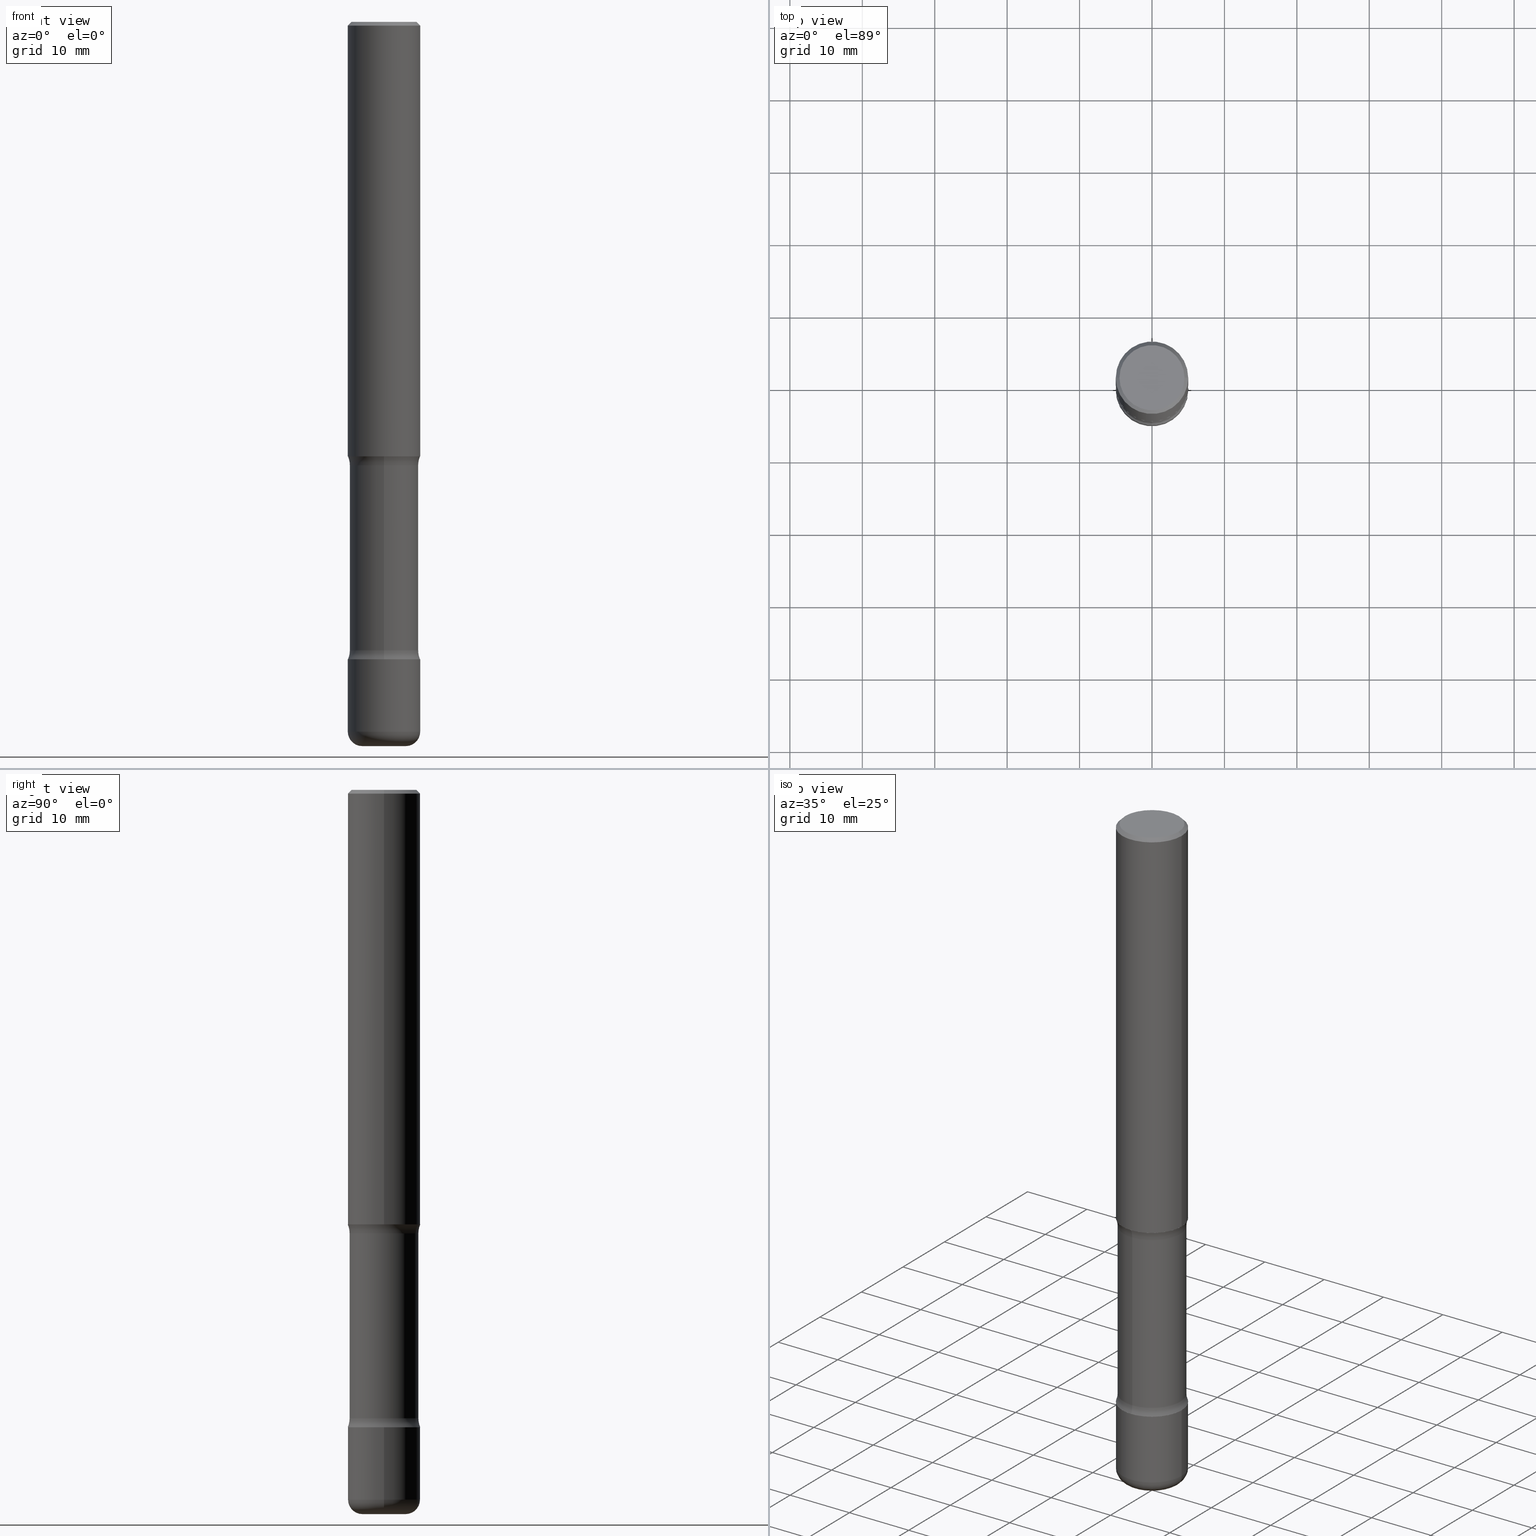
[diagram: canonical four-view strip — front | top / right | iso, engineering-drawing reading convention]
A machine part, canonical four-view strip (front | top / right | iso — engineering-drawing reading convention). The complete STEP part file that produces these views, byte-faithful:
ISO-10303-21;
HEADER;
FILE_DESCRIPTION (( 'STEP AP203' ),
    '1' );
FILE_NAME ('46825.STEP',
    '2024-03-02T05:34:21',
    ( '' ),
    ( '' ),
    'SwSTEP 2.0',
    'SolidWorks 2023',
    '' );
FILE_SCHEMA (( 'CONFIG_CONTROL_DESIGN' ));
ENDSEC;

DATA;
#1 = DIRECTION ( 'NONE',  ( 1.000000000000000000, -6.982962677686266711E-15, 4.875932113059882493E-29 ) ) ;
#2 = AXIS2_PLACEMENT_3D ( 'NONE', #495, #454, #107 ) ;
#3 = APPROVAL_PERSON_ORGANIZATION ( #431, #208, #305 ) ;
#4 = CALENDAR_DATE ( 2024, 2, 3 ) ;
#5 = EDGE_LOOP ( 'NONE', ( #354, #187 ) ) ;
#6 = ORIENTED_EDGE ( 'NONE', *, *, #452, .F. ) ;
#7 = EDGE_CURVE ( 'NONE', #347, #151, #129, .T. ) ;
#8 = LINE ( 'NONE', #16, #221 ) ;
#9 = VERTEX_POINT ( 'NONE', #148 ) ;
#10 = EDGE_LOOP ( 'NONE', ( #534, #532 ) ) ;
#11 = CARTESIAN_POINT ( 'NONE',  ( 5.776686413970530874E-29, -8.247577218615281204E-15, -2.362200000000000522 ) ) ;
#12 = CLOSED_SHELL ( 'NONE', ( #348, #316, #63, #189, #24, #50 ) ) ;
#13 = ORGANIZATION ( 'UNSPECIFIED', 'UNSPECIFIED', '' ) ;
#14 = EDGE_LOOP ( 'NONE', ( #502, #144, #415, #143 ) ) ;
#15 = ADVANCED_FACE ( 'NONE', ( #325 ), #116, .T. ) ;
#16 = CARTESIAN_POINT ( 'NONE',  ( 0.1968499999999999139, -1.420318657638188530E-15, -0.02000000000000006981 ) ) ;
#17 = ORIENTED_EDGE ( 'NONE', *, *, #250, .T. ) ;
#18 = ORIENTED_EDGE ( 'NONE', *, *, #54, .T. ) ;
#19 = CC_DESIGN_PERSON_AND_ORGANIZATION_ASSIGNMENT ( #93, #497, ( #74 ) ) ;
#20 = EDGE_LOOP ( 'NONE', ( #318, #62, #392, #544 ) ) ;
#21 = AXIS2_PLACEMENT_3D ( 'NONE', #512, #36, #549 ) ;
#22 = DIRECTION ( 'NONE',  ( 2.624067104346795258E-29, -3.235718410691801766E-15, -1.000000000000000000 ) ) ;
#23 = AXIS2_PLACEMENT_3D ( 'NONE', #436, #350, #41 ) ;
#24 = ADVANCED_FACE ( 'NONE', ( #110 ), #496, .T. ) ;
#25 = DIRECTION ( 'NONE',  ( -2.445468806185136597E-29, 3.491481338843145583E-15, 1.000000000000000000 ) ) ;
#26 = EDGE_LOOP ( 'NONE', ( #18, #455, #400, #100 ) ) ;
#27 = DIRECTION ( 'NONE',  ( -1.000000000000000000, 6.982962677686265922E-15, -4.876176775795935793E-29 ) ) ;
#28 = CARTESIAN_POINT ( 'NONE',  ( -1.316701078222246415E-15, -0.1870000000000088536, -2.410836174808469679 ) ) ;
#29 = AXIS2_PLACEMENT_3D ( 'NONE', #193, #150, #498 ) ;
#30 = CC_DESIGN_PERSON_AND_ORGANIZATION_ASSIGNMENT ( #279, #311, ( #351 ) ) ;
#31 = DIRECTION ( 'NONE',  ( 2.438088387897960049E-29, -3.491481338843145188E-15, -1.000000000000000000 ) ) ;
#32 = DIRECTION ( 'NONE',  ( 0.7071067811865472397, -7.319954787623254468E-15, -0.7071067811865477948 ) ) ;
#33 = PLANE ( 'NONE',  #542 ) ;
#34 = CARTESIAN_POINT ( 'NONE',  ( 0.000000000000000000, 0.000000000000000000, 0.000000000000000000 ) ) ;
#35 = PERSON_AND_ORGANIZATION_ROLE ( 'design_supplier' ) ;
#36 = DIRECTION ( 'NONE',  ( -2.445468806185136597E-29, 3.491481338843145583E-15, 1.000000000000000000 ) ) ;
#37 = CYLINDRICAL_SURFACE ( 'NONE', #522, 0.1968500000000000250 ) ;
#38 = EDGE_CURVE ( 'NONE', #98, #526, #439, .T. ) ;
#39 = AXIS2_PLACEMENT_3D ( 'NONE', #377, #173, #547 ) ;
#40 = FACE_OUTER_BOUND ( 'NONE', #490, .T. ) ;
#41 = DIRECTION ( 'NONE',  ( 1.000000000000000000, -6.982962677686269866E-15, 0.000000000000000000 ) ) ;
#42 = DIRECTION ( 'NONE',  ( 6.982962677686265922E-15, 1.000000000000000000, -2.775563112689115117E-15 ) ) ;
#43 = DIRECTION ( 'NONE',  ( 1.000000000000000000, -6.982962677686265922E-15, 4.876176775795935793E-29 ) ) ;
#44 =( LENGTH_UNIT ( ) NAMED_UNIT ( * ) SI_UNIT ( $, .METRE. ) );
#45 = DIRECTION ( 'NONE',  ( 2.624067104346795258E-29, -3.235718410691801766E-15, -1.000000000000000000 ) ) ;
#46 = FACE_OUTER_BOUND ( 'NONE', #185, .T. ) ;
#47 = CIRCLE ( 'NONE', #500, 0.1968500000000001082 ) ;
#48 = AXIS2_PLACEMENT_3D ( 'NONE', #404, #438, #353 ) ;
#49 = DIRECTION ( 'NONE',  ( 6.982962677686265922E-15, 1.000000000000000000, -3.235718410691801766E-15 ) ) ;
#50 = ADVANCED_FACE ( 'NONE', ( #285 ), #70, .F. ) ;
#51 = APPLICATION_PROTOCOL_DEFINITION ( 'international standard', 'config_control_design', 1994, #517 ) ;
#52 = ORIENTED_EDGE ( 'NONE', *, *, #141, .T. ) ;
#53 = EDGE_LOOP ( 'NONE', ( #451, #273 ) ) ;
#54 = EDGE_CURVE ( 'NONE', #352, #395, #47, .T. ) ;
#55 = CARTESIAN_POINT ( 'NONE',  ( 1.305814020727390180E-15, 0.1869999999999915063, -2.410836174808470567 ) ) ;
#56 = VERTEX_POINT ( 'NONE', #196 ) ;
#57 = MANIFOLD_SOLID_BREP ( 'Body-Move/Copy2[1]', #12 ) ;
#58 = AXIS2_PLACEMENT_3D ( 'NONE', #389, #559, #172 ) ;
#59 = ORIENTED_EDGE ( 'NONE', *, *, #263, .F. ) ;
#60 = CC_DESIGN_APPROVAL ( #208, ( #355 ) ) ;
#61 = DATE_AND_TIME ( #327, #121 ) ;
#62 = ORIENTED_EDGE ( 'NONE', *, *, #152, .T. ) ;
#63 = ADVANCED_FACE ( 'NONE', ( #416 ), #290, .T. ) ;
#64 = ORIENTED_EDGE ( 'NONE', *, *, #382, .F. ) ;
#65 = CARTESIAN_POINT ( 'NONE',  ( 4.890937612370289799E-31, -6.982962677686315028E-17, -0.02000000000000006981 ) ) ;
#66 = CARTESIAN_POINT ( 'NONE',  ( 8.472571225909025905E-29, -1.209658624655596531E-14, -3.464600000000000346 ) ) ;
#67 = CIRCLE ( 'NONE', #337, 0.1768499999999998407 ) ;
#68 = ORIENTED_EDGE ( 'NONE', *, *, #133, .F. ) ;
#69 = DIRECTION ( 'NONE',  ( -2.445468806185136597E-29, 3.491481338843145583E-15, 1.000000000000000000 ) ) ;
#70 = PLANE ( 'NONE',  #508 ) ;
#71 = EDGE_CURVE ( 'NONE', #9, #280, #447, .T. ) ;
#72 = DIRECTION ( 'NONE',  ( -1.000000000000000000, 6.982962677686265922E-15, -4.883557194083112340E-29 ) ) ;
#73 = AXIS2_PLACEMENT_3D ( 'NONE', #224, #393, #399 ) ;
#74 = SECURITY_CLASSIFICATION ( '', '', #211 ) ;
#75 = CARTESIAN_POINT ( 'NONE',  ( 0.1968500000000001082, -1.347118244965850692E-14, -3.464600000000000346 ) ) ;
#76 = DIRECTION ( 'NONE',  ( -2.445468806185136877E-29, 3.491481338843145188E-15, 1.000000000000000000 ) ) ;
#77 = DIRECTION ( 'NONE',  ( -2.445468806185136877E-29, 3.491481338843145188E-15, 1.000000000000000000 ) ) ;
#78 = DIRECTION ( 'NONE',  ( 1.000000000000000000, -6.982962677686269866E-15, 0.000000000000000000 ) ) ;
#79 = CARTESIAN_POINT ( 'NONE',  ( 1.305814020727429623E-15, 0.1869999999999864826, -3.937000000000001165 ) ) ;
#80 = TOROIDAL_SURFACE ( 'NONE', #336, 0.3120000000000001106, 0.1250000000000000278 ) ;
#81 = VECTOR ( 'NONE', #76, 39.37007874015748143 ) ;
#82 = DIRECTION ( 'NONE',  ( 7.105427357601001859E-15, 1.000000000000000000, -3.491481338843145583E-15 ) ) ;
#83 = CARTESIAN_POINT ( 'NONE',  ( -0.1968499999999999139, 1.304766576325677916E-15, -0.02000000000000006981 ) ) ;
#84 =( NAMED_UNIT ( * ) PLANE_ANGLE_UNIT ( ) SI_UNIT ( $, .RADIAN. ) );
#85 = CARTESIAN_POINT ( 'NONE',  ( -0.1968500000000001082, -1.138518097276347833E-14, -3.464600000000000346 ) ) ;
#86 = DIRECTION ( 'NONE',  ( 2.445468806185136597E-29, -3.491481338843145583E-15, -1.000000000000000000 ) ) ;
#87 = EDGE_CURVE ( 'NONE', #488, #236, #176, .T. ) ;
#88 = PERSON_AND_ORGANIZATION ( #405, #13 ) ;
#89 = VERTEX_POINT ( 'NONE', #341 ) ;
#90 = CALENDAR_DATE ( 2024, 2, 3 ) ;
#91 = CIRCLE ( 'NONE', #39, 0.1870000000000001938 ) ;
#92 = AXIS2_PLACEMENT_3D ( 'NONE', #516, #427, #480 ) ;
#93 = PERSON_AND_ORGANIZATION ( #405, #13 ) ;
#95 = EDGE_CURVE ( 'NONE', #446, #9, #207, .T. ) ;
#94 = CARTESIAN_POINT ( 'NONE',  ( 2.178684355438199354E-15, 0.3119999999999881757, -3.415963825191532521 ) ) ;
#96 = DIRECTION ( 'NONE',  ( 1.000000000000000000, -6.860497997771530774E-15, 4.843931072137153750E-29 ) ) ;
#97 = ORIENTED_EDGE ( 'NONE', *, *, #71, .F. ) ;
#98 = VERTEX_POINT ( 'NONE', #505 ) ;
#99 = DIRECTION ( 'NONE',  ( 6.982962677686265922E-15, 1.000000000000000000, -2.775563112689111173E-15 ) ) ;
#100 = ORIENTED_EDGE ( 'NONE', *, *, #367, .F. ) ;
#101 = ADVANCED_FACE ( 'NONE', ( #472 ), #363, .F. ) ;
#102 = APPLICATION_CONTEXT ( 'configuration controlled 3d designs of mechanical parts and assemblies' ) ;
#103 = EDGE_LOOP ( 'NONE', ( #106, #198 ) ) ;
#104 = ORIENTED_EDGE ( 'NONE', *, *, #115, .F. ) ;
#105 = CIRCLE ( 'NONE', #120, 0.1250000000000000278 ) ;
#106 = ORIENTED_EDGE ( 'NONE', *, *, #54, .F. ) ;
#107 = DIRECTION ( 'NONE',  ( 6.982962677686265133E-15, 1.000000000000000000, -2.921762560068727834E-15 ) ) ;
#108 = DIRECTION ( 'NONE',  ( 1.000000000000000000, 0.000000000000000000, 0.000000000000000000 ) ) ;
#109 = ORIENTED_EDGE ( 'NONE', *, *, #38, .T. ) ;
#110 = FACE_OUTER_BOUND ( 'NONE', #484, .T. ) ;
#111 = CARTESIAN_POINT ( 'NONE',  ( 8.472571225909025905E-29, -1.209658624655596531E-14, -3.464600000000000346 ) ) ;
#112 = EDGE_CURVE ( 'NONE', #536, #280, #560, .T. ) ;
#113 = CARTESIAN_POINT ( 'NONE',  ( 5.776686413970530874E-29, -8.247577218615281204E-15, -2.362200000000000522 ) ) ;
#114 = DIRECTION ( 'NONE',  ( -2.445468806185136597E-29, 3.491481338843145583E-15, 1.000000000000000000 ) ) ;
#115 = EDGE_CURVE ( 'NONE', #151, #347, #391, .T. ) ;
#116 = CYLINDRICAL_SURFACE ( 'NONE', #140, 0.1870000000000001106 ) ;
#117 = DESIGN_CONTEXT ( 'detailed design', #102, 'design' ) ;
#118 = CARTESIAN_POINT ( 'NONE',  ( 8.353632977562745750E-29, -1.192677394981947985E-14, -3.415963825191531189 ) ) ;
#119 = FACE_OUTER_BOUND ( 'NONE', #20, .T. ) ;
#120 = AXIS2_PLACEMENT_3D ( 'NONE', #138, #96, #300 ) ;
#121 = LOCAL_TIME ( 0, 34, 21.00000000000000000, #319 ) ;
#122 = ORIENTED_EDGE ( 'NONE', *, *, #485, .F. ) ;
#123 = PLANE ( 'NONE',  #183 ) ;
#124 = CARTESIAN_POINT ( 'NONE',  ( 0.1181500000000002409, -1.429621949002714343E-14, -3.858300000000000285 ) ) ;
#125 = LINE ( 'NONE', #503, #294 ) ;
#126 = FACE_OUTER_BOUND ( 'NONE', #463, .T. ) ;
#127 = DIRECTION ( 'NONE',  ( 1.000000000000000000, -6.982962677686261977E-15, 4.883557194083110659E-29 ) ) ;
#128 = CYLINDRICAL_SURFACE ( 'NONE', #287, 0.1968500000000001915 ) ;
#129 = CIRCLE ( 'NONE', #306, 0.1968500000000001082 ) ;
#130 = APPROVAL_PERSON_ORGANIZATION ( #88, #509, #546 ) ;
#131 = DIRECTION ( 'NONE',  ( 1.000000000000000000, -6.982962677686265922E-15, 4.876176775795935793E-29 ) ) ;
#132 = FACE_OUTER_BOUND ( 'NONE', #398, .T. ) ;
#133 = EDGE_CURVE ( 'NONE', #446, #536, #91, .T. ) ;
#134 = DIRECTION ( 'NONE',  ( 2.624067104346795258E-29, -3.235718410691801766E-15, -1.000000000000000000 ) ) ;
#135 = ORIENTED_EDGE ( 'NONE', *, *, #95, .F. ) ;
#136 = CARTESIAN_POINT ( 'NONE',  ( 1.374596203102599787E-15, 0.1968499999999918371, -2.362200000000001410 ) ) ;
#137 = DIRECTION ( 'NONE',  ( 6.982962677686265922E-15, 1.000000000000000000, -3.235718410691801766E-15 ) ) ;
#138 = CARTESIAN_POINT ( 'NONE',  ( -2.140475375304634878E-15, -0.3120000000000120455, -3.415963825191530301 ) ) ;
#139 = ORIENTED_EDGE ( 'NONE', *, *, #367, .T. ) ;
#140 = AXIS2_PLACEMENT_3D ( 'NONE', #328, #539, #461 ) ;
#141 = EDGE_CURVE ( 'NONE', #236, #488, #428, .T. ) ;
#142 = ORIENTED_EDGE ( 'NONE', *, *, #263, .T. ) ;
#143 = ORIENTED_EDGE ( 'NONE', *, *, #413, .T. ) ;
#144 = ORIENTED_EDGE ( 'NONE', *, *, #7, .F. ) ;
#145 = ORIENTED_EDGE ( 'NONE', *, *, #557, .F. ) ;
#146 = CIRCLE ( 'NONE', #190, 0.1968500000000002470 ) ;
#147 = CIRCLE ( 'NONE', #23, 0.1181500000000002409 ) ;
#148 = CARTESIAN_POINT ( 'NONE',  ( -1.316701078222217030E-15, -0.1870000000000119622, -3.415963825191530745 ) ) ;
#149 = EDGE_CURVE ( 'NONE', #526, #98, #146, .T. ) ;
#150 = DIRECTION ( 'NONE',  ( -2.445468806185136597E-29, 3.491481338843145583E-15, 1.000000000000000000 ) ) ;
#151 = VERTEX_POINT ( 'NONE', #167 ) ;
#152 = EDGE_CURVE ( 'NONE', #89, #526, #329, .T. ) ;
#153 = DIRECTION ( 'NONE',  ( 2.624067104346795258E-29, -3.235718410691801766E-15, -1.000000000000000000 ) ) ;
#154 = CIRCLE ( 'NONE', #475, 0.07870000000000021423 ) ;
#155 = DIRECTION ( 'NONE',  ( 2.438088387897960049E-29, -3.491481338843145188E-15, -1.000000000000000000 ) ) ;
#156 =( GEOMETRIC_REPRESENTATION_CONTEXT ( 3 ) GLOBAL_UNCERTAINTY_ASSIGNED_CONTEXT ( ( #368 ) ) GLOBAL_UNIT_ASSIGNED_CONTEXT ( ( #343, #84, #424 ) ) REPRESENTATION_CONTEXT ( 'NONE', 'WORKASPACE' ) );
#157 = DIRECTION ( 'NONE',  ( 1.000000000000000000, -6.982962677686266711E-15, 0.000000000000000000 ) ) ;
#158 = CARTESIAN_POINT ( 'NONE',  ( 9.627810689950884790E-29, -1.374596203102546657E-14, -3.937000000000000721 ) ) ;
#159 = CC_DESIGN_DATE_AND_TIME_ASSIGNMENT ( #61, #362, ( #74 ) ) ;
#160 = COORDINATED_UNIVERSAL_TIME_OFFSET ( 5, 0, .BEHIND. ) ;
#161 = DIRECTION ( 'NONE',  ( 6.982962677686265922E-15, 1.000000000000000000, -3.235718410691802160E-15 ) ) ;
#162 = CYLINDRICAL_SURFACE ( 'NONE', #247, 0.1870000000000001106 ) ;
#163 = DIRECTION ( 'NONE',  ( 1.000000000000000000, -6.982962677686269866E-15, 0.000000000000000000 ) ) ;
#164 = CARTESIAN_POINT ( 'NONE',  ( 5.776686413970530874E-29, -8.247577218615281204E-15, -2.362200000000000522 ) ) ;
#165 = CLOSED_SHELL ( 'NONE', ( #284, #289, #474, #226, #174, #298 ) ) ;
#166 = AXIS2_PLACEMENT_3D ( 'NONE', #65, #410, #281 ) ;
#167 = CARTESIAN_POINT ( 'NONE',  ( -1.350489030861241415E-15, -0.1968500000000121264, -3.464599999999999902 ) ) ;
#168 = DATE_AND_TIME ( #513, #308 ) ;
#169 = DIRECTION ( 'NONE',  ( -2.445468806185136597E-29, 3.491481338843145583E-15, 1.000000000000000000 ) ) ;
#170 = CARTESIAN_POINT ( 'NONE',  ( 1.234936949548815012E-15, 0.1768499999999998407, -6.153342185293596592E-16 ) ) ;
#171 = APPROVAL_STATUS ( 'not_yet_approved' ) ;
#172 = DIRECTION ( 'NONE',  ( 1.000000000000000000, -6.982962677686261977E-15, 4.883557194083110659E-29 ) ) ;
#173 = DIRECTION ( 'NONE',  ( 2.624067104346795258E-29, -3.235718410691801766E-15, -1.000000000000000000 ) ) ;
#174 = ADVANCED_FACE ( 'NONE', ( #465 ), #123, .F. ) ;
#175 = CARTESIAN_POINT ( 'NONE',  ( 0.000000000000000000, 0.000000000000000000, 0.000000000000000000 ) ) ;
#176 = CIRCLE ( 'NONE', #528, 0.1968500000000001082 ) ;
#177 = AXIS2_PLACEMENT_3D ( 'NONE', #244, #69, #157 ) ;
#178 = ORIENTED_EDGE ( 'NONE', *, *, #514, .T. ) ;
#179 = ORIENTED_EDGE ( 'NONE', *, *, #485, .T. ) ;
#180 = ORIENTED_EDGE ( 'NONE', *, *, #479, .T. ) ;
#181 = ADVANCED_FACE ( 'NONE', ( #344 ), #80, .F. ) ;
#182 = ORIENTED_EDGE ( 'NONE', *, *, #407, .F. ) ;
#183 = AXIS2_PLACEMENT_3D ( 'NONE', #164, #518, #131 ) ;
#184 = AXIS2_PLACEMENT_3D ( 'NONE', #373, #206, #108 ) ;
#185 = EDGE_LOOP ( 'NONE', ( #109, #239, #444, #122 ) ) ;
#186 = CARTESIAN_POINT ( 'NONE',  ( 8.353632977562745750E-29, -1.192677394981947985E-14, -3.415963825191531189 ) ) ;
#187 = ORIENTED_EDGE ( 'NONE', *, *, #115, .T. ) ;
#188 = ORIENTED_EDGE ( 'NONE', *, *, #552, .T. ) ;
#189 = ADVANCED_FACE ( 'NONE', ( #40 ), #411, .T. ) ;
#190 = AXIS2_PLACEMENT_3D ( 'NONE', #434, #212, #78 ) ;
#191 = TOROIDAL_SURFACE ( 'NONE', #214, 0.3120000000000001106, 0.1250000000000000278 ) ;
#192 = LOCAL_TIME ( 0, 34, 21.00000000000000000, #260 ) ;
#193 = CARTESIAN_POINT ( 'NONE',  ( 9.435352294904112142E-29, -1.347118244965850850E-14, -3.858300000000000285 ) ) ;
#194 = CC_DESIGN_PERSON_AND_ORGANIZATION_ASSIGNMENT ( #425, #35, ( #355 ) ) ;
#195 = EDGE_CURVE ( 'NONE', #227, #360, #486, .T. ) ;
#196 = CARTESIAN_POINT ( 'NONE',  ( -0.1768499999999998407, 1.269851762937246464E-15, 4.268512490091652920E-18 ) ) ;
#197 = EDGE_CURVE ( 'NONE', #536, #453, #274, .T. ) ;
#198 = ORIENTED_EDGE ( 'NONE', *, *, #552, .F. ) ;
#199 = ADVANCED_BREP_SHAPE_REPRESENTATION ( '46825', ( #57, #420, #242, #184 ), #156 ) ;
#200 = PRODUCT_RELATED_PRODUCT_CATEGORY ( 'detail', '', ( #351 ) ) ;
#201 = DIRECTION ( 'NONE',  ( 1.000000000000000000, -6.982962677686266711E-15, 4.876176775795935793E-29 ) ) ;
#202 = FACE_OUTER_BOUND ( 'NONE', #442, .T. ) ;
#203 = PERSON_AND_ORGANIZATION_ROLE ( 'creator' ) ;
#204 = CARTESIAN_POINT ( 'NONE',  ( 0.1968499999999999139, -1.420318657638188530E-15, -0.02000000000000006981 ) ) ;
#205 = CARTESIAN_POINT ( 'NONE',  ( 8.344946639512860157E-29, -1.193921328030257430E-14, -3.415963825191531189 ) ) ;
#206 = DIRECTION ( 'NONE',  ( 0.000000000000000000, 0.000000000000000000, 1.000000000000000000 ) ) ;
#207 = LINE ( 'NONE', #216, #286 ) ;
#208 = APPROVAL ( #171, 'UNSPECIFIED' ) ;
#209 = CARTESIAN_POINT ( 'NONE',  ( -1.043851414335219820E-46, 1.490343170380447200E-32, 4.268512490100411279E-18 ) ) ;
#210 = PERSON_AND_ORGANIZATION ( #405, #13 ) ;
#211 = SECURITY_CLASSIFICATION_LEVEL ( 'unclassified' ) ;
#212 = DIRECTION ( 'NONE',  ( -2.445468806185136597E-29, 3.491481338843145583E-15, 1.000000000000000000 ) ) ;
#213 = DIRECTION ( 'NONE',  ( -1.000000000000000000, 6.982962677686266711E-15, 0.000000000000000000 ) ) ;
#214 = AXIS2_PLACEMENT_3D ( 'NONE', #186, #45, #49 ) ;
#215 = EDGE_CURVE ( 'NONE', #243, #98, #154, .T. ) ;
#216 = CARTESIAN_POINT ( 'NONE',  ( -1.282913125583180022E-15, -0.1870000000000137386, -3.937000000000000277 ) ) ;
#217 = DIRECTION ( 'NONE',  ( -1.000000000000000000, 6.982962677686265922E-15, -4.883557194083112340E-29 ) ) ;
#218 = FACE_OUTER_BOUND ( 'NONE', #26, .T. ) ;
#219 = DIRECTION ( 'NONE',  ( 2.624067104346795258E-29, -3.235718410691801766E-15, -1.000000000000000000 ) ) ;
#220 = DIRECTION ( 'NONE',  ( -2.445468806185136597E-29, 3.491481338843145583E-15, 1.000000000000000000 ) ) ;
#221 = VECTOR ( 'NONE', #32, 39.37007874015748143 ) ;
#222 = ORIENTED_EDGE ( 'NONE', *, *, #413, .F. ) ;
#223 = APPROVAL_PERSON_ORGANIZATION ( #235, #481, #366 ) ;
#224 = CARTESIAN_POINT ( 'NONE',  ( -2.140475375304662094E-15, -0.3120000000000089369, -2.410836174808469234 ) ) ;
#225 = ORIENTED_EDGE ( 'NONE', *, *, #557, .T. ) ;
#226 = ADVANCED_FACE ( 'NONE', ( #419 ), #430, .F. ) ;
#227 = VERTEX_POINT ( 'NONE', #204 ) ;
#228 = ORIENTED_EDGE ( 'NONE', *, *, #195, .T. ) ;
#229 = CC_DESIGN_PERSON_AND_ORGANIZATION_ASSIGNMENT ( #469, #203, ( #355 ) ) ;
#230 = AXIS2_PLACEMENT_3D ( 'NONE', #170, #31, #342 ) ;
#231 = CC_DESIGN_APPROVAL ( #509, ( #460 ) ) ;
#232 = FACE_OUTER_BOUND ( 'NONE', #441, .T. ) ;
#233 = EDGE_LOOP ( 'NONE', ( #533, #397, #317, #178 ) ) ;
#234 = ORIENTED_EDGE ( 'NONE', *, *, #71, .T. ) ;
#235 = PERSON_AND_ORGANIZATION ( #405, #13 ) ;
#236 = VERTEX_POINT ( 'NONE', #75 ) ;
#237 = APPROVAL_STATUS ( 'not_yet_approved' ) ;
#238 = CIRCLE ( 'NONE', #73, 0.1250000000000000278 ) ;
#239 = ORIENTED_EDGE ( 'NONE', *, *, #382, .T. ) ;
#240 = COORDINATED_UNIVERSAL_TIME_OFFSET ( 5, 0, .BEHIND. ) ;
#241 = ORIENTED_EDGE ( 'NONE', *, *, #87, .T. ) ;
#242 = MANIFOLD_SOLID_BREP ( 'Body-Move/Copy2[4]', #535 ) ;
#243 = VERTEX_POINT ( 'NONE', #251 ) ;
#244 = CARTESIAN_POINT ( 'NONE',  ( 4.890937612370289799E-31, -6.982962677686315028E-17, -0.02000000000000006981 ) ) ;
#245 = ADVANCED_FACE ( 'NONE', ( #421 ), #33, .F. ) ;
#246 = AXIS2_PLACEMENT_3D ( 'NONE', #376, #254, #161 ) ;
#247 = AXIS2_PLACEMENT_3D ( 'NONE', #545, #334, #394 ) ;
#248 = DIRECTION ( 'NONE',  ( -6.982962677686266711E-15, -1.000000000000000000, 3.491481338843145583E-15 ) ) ;
#249 = DIRECTION ( 'NONE',  ( 2.624067104346795258E-29, -3.235718410691801766E-15, -1.000000000000000000 ) ) ;
#250 = EDGE_CURVE ( 'NONE', #530, #453, #372, .T. ) ;
#251 = CARTESIAN_POINT ( 'NONE',  ( 0.1181500000000002409, -1.457099907139409992E-14, -3.937000000000000721 ) ) ;
#252 = DIRECTION ( 'NONE',  ( -0.7071067811865472397, 2.468850131082253905E-15, -0.7071067811865477948 ) ) ;
#253 = LINE ( 'NONE', #261, #521 ) ;
#254 = DIRECTION ( 'NONE',  ( 2.624067104346795258E-29, -3.235718410691801766E-15, -1.000000000000000000 ) ) ;
#255 = CARTESIAN_POINT ( 'NONE',  ( -1.043851414335219820E-46, 1.490343170380447200E-32, 4.268512490100411279E-18 ) ) ;
#256 = ADVANCED_FACE ( 'NONE', ( #232 ), #191, .F. ) ;
#257 = DIRECTION ( 'NONE',  ( -2.445468806185136597E-29, 3.491481338843145583E-15, 1.000000000000000000 ) ) ;
#258 = DIRECTION ( 'NONE',  ( 2.624067104346795258E-29, -3.235718410691801766E-15, -1.000000000000000000 ) ) ;
#259 = DIRECTION ( 'NONE',  ( 1.000000000000000000, -6.982962677686266711E-15, 0.000000000000000000 ) ) ;
#260 = COORDINATED_UNIVERSAL_TIME_OFFSET ( 5, 0, .BEHIND. ) ;
#261 = CARTESIAN_POINT ( 'NONE',  ( 0.1968500000000000250, -1.374596203102541608E-15, 9.598753983154300858E-30 ) ) ;
#262 = LINE ( 'NONE', #435, #418 ) ;
#263 = EDGE_CURVE ( 'NONE', #272, #227, #8, .T. ) ;
#264 = EDGE_LOOP ( 'NONE', ( #361, #145 ) ) ;
#265 = AXIS2_PLACEMENT_3D ( 'NONE', #333, #82, #380 ) ;
#266 = AXIS2_PLACEMENT_3D ( 'NONE', #11, #356, #433 ) ;
#267 = PRODUCT_DEFINITION_SHAPE ( 'NONE', 'NONE',  #460 ) ;
#268 = CARTESIAN_POINT ( 'NONE',  ( 5.579799650077118431E-29, -8.529530270609321221E-15, -2.362200000000000522 ) ) ;
#269 = EDGE_LOOP ( 'NONE', ( #59, #408, #358, #371 ) ) ;
#270 = CARTESIAN_POINT ( 'NONE',  ( -1.350489030861272970E-15, -0.1968500000000089345, -2.362199999999999633 ) ) ;
#271 = ORIENTED_EDGE ( 'NONE', *, *, #396, .F. ) ;
#272 = VERTEX_POINT ( 'NONE', #370 ) ;
#273 = ORIENTED_EDGE ( 'NONE', *, *, #340, .T. ) ;
#274 = CIRCLE ( 'NONE', #551, 0.1250000000000000278 ) ;
#275 = ORIENTED_EDGE ( 'NONE', *, *, #112, .F. ) ;
#276 = ADVANCED_FACE ( 'NONE', ( #283 ), #541, .F. ) ;
#277 = AXIS2_PLACEMENT_3D ( 'NONE', #296, #220, #163 ) ;
#278 = AXIS2_PLACEMENT_3D ( 'NONE', #209, #257, #1 ) ;
#279 = PERSON_AND_ORGANIZATION ( #405, #13 ) ;
#280 = VERTEX_POINT ( 'NONE', #310 ) ;
#281 = DIRECTION ( 'NONE',  ( -1.000000000000000000, 6.982962677686266711E-15, 0.000000000000000000 ) ) ;
#282 = DIRECTION ( 'NONE',  ( -2.445468806185136597E-29, 3.491481338843145583E-15, 1.000000000000000000 ) ) ;
#283 = FACE_OUTER_BOUND ( 'NONE', #5, .T. ) ;
#284 = ADVANCED_FACE ( 'NONE', ( #218 ), #37, .T. ) ;
#285 = FACE_OUTER_BOUND ( 'NONE', #365, .T. ) ;
#286 = VECTOR ( 'NONE', #219, 39.37007874015748143 ) ;
#287 = AXIS2_PLACEMENT_3D ( 'NONE', #175, #307, #478 ) ;
#288 = CARTESIAN_POINT ( 'NONE',  ( 8.472571225909025905E-29, -1.209658624655596531E-14, -3.464600000000000346 ) ) ;
#289 = ADVANCED_FACE ( 'NONE', ( #132 ), #464, .T. ) ;
#290 = PLANE ( 'NONE',  #492 ) ;
#291 = ADVANCED_FACE ( 'NONE', ( #126 ), #330, .F. ) ;
#292 = DIRECTION ( 'NONE',  ( 1.000000000000000000, -6.982962677686265133E-15, 0.000000000000000000 ) ) ;
#293 = AXIS2_PLACEMENT_3D ( 'NONE', #504, #153, #499 ) ;
#294 = VECTOR ( 'NONE', #252, 39.37007874015748143 ) ;
#295 = DIRECTION ( 'NONE',  ( -6.982962677686265133E-15, -1.000000000000000000, 0.000000000000000000 ) ) ;
#296 = CARTESIAN_POINT ( 'NONE',  ( 9.627810689950884790E-29, -1.374596203102546657E-14, -3.937000000000000721 ) ) ;
#297 = DATE_AND_TIME ( #507, #476 ) ;
#298 = ADVANCED_FACE ( 'NONE', ( #519 ), #384, .T. ) ;
#299 = CARTESIAN_POINT ( 'NONE',  ( 5.776686413970530874E-29, -8.247577218615281204E-15, -2.362200000000000522 ) ) ;
#300 = DIRECTION ( 'NONE',  ( 6.860497997771532351E-15, 1.000000000000000000, 0.000000000000000000 ) ) ;
#301 = DIRECTION ( 'NONE',  ( 1.000000000000000000, -6.982962677686276177E-15, 0.000000000000000000 ) ) ;
#302 = DATE_TIME_ROLE ( 'creation_date' ) ;
#303 = DIRECTION ( 'NONE',  ( 6.982962677686266711E-15, 1.000000000000000000, -2.921762560068730595E-15 ) ) ;
#304 = DIRECTION ( 'NONE',  ( 1.000000000000000000, -6.982962677686265922E-15, 4.876176775795935793E-29 ) ) ;
#305 = APPROVAL_ROLE ( '' ) ;
#306 = AXIS2_PLACEMENT_3D ( 'NONE', #288, #22, #540 ) ;
#307 = DIRECTION ( 'NONE',  ( -2.445468806185136597E-29, 3.491481338843145583E-15, 1.000000000000000000 ) ) ;
#308 = LOCAL_TIME ( 0, 34, 21.00000000000000000, #339 ) ;
#309 = CARTESIAN_POINT ( 'NONE',  ( 4.890937612370289799E-31, -6.982962677686315028E-17, -0.02000000000000006981 ) ) ;
#310 = CARTESIAN_POINT ( 'NONE',  ( 1.305814020727415423E-15, 0.1869999999999880647, -3.415963825191531633 ) ) ;
#311 = PERSON_AND_ORGANIZATION_ROLE ( 'design_owner' ) ;
#312 = ORIENTED_EDGE ( 'NONE', *, *, #531, .T. ) ;
#313 = CC_DESIGN_DATE_AND_TIME_ASSIGNMENT ( #168, #302, ( #460 ) ) ;
#314 = ORIENTED_EDGE ( 'NONE', *, *, #87, .F. ) ;
#315 = CIRCLE ( 'NONE', #429, 0.1250000000000000278 ) ;
#316 = ADVANCED_FACE ( 'NONE', ( #119 ), #458, .T. ) ;
#317 = ORIENTED_EDGE ( 'NONE', *, *, #197, .T. ) ;
#318 = ORIENTED_EDGE ( 'NONE', *, *, #387, .T. ) ;
#319 = COORDINATED_UNIVERSAL_TIME_OFFSET ( 5, 0, .BEHIND. ) ;
#320 = ORIENTED_EDGE ( 'NONE', *, *, #340, .F. ) ;
#321 = VECTOR ( 'NONE', #383, 39.37007874015748143 ) ;
#322 = DIMENSIONAL_EXPONENTS ( 1.000000000000000000, 0.000000000000000000, 0.000000000000000000, 0.000000000000000000, 0.000000000000000000, 0.000000000000000000, 0.000000000000000000 ) ;
#323 = CIRCLE ( 'NONE', #487, 0.1968500000000004135 ) ;
#324 = LOCAL_TIME ( 0, 34, 21.00000000000000000, #240 ) ;
#325 = FACE_OUTER_BOUND ( 'NONE', #538, .T. ) ;
#326 = CARTESIAN_POINT ( 'NONE',  ( 0.000000000000000000, 0.000000000000000000, 0.000000000000000000 ) ) ;
#327 = CALENDAR_DATE ( 2024, 2, 3 ) ;
#328 = CARTESIAN_POINT ( 'NONE',  ( 9.712180526002452972E-29, -1.362513962376677023E-14, -3.937000000000000721 ) ) ;
#329 = CIRCLE ( 'NONE', #265, 0.07870000000000021423 ) ;
#330 = TOROIDAL_SURFACE ( 'NONE', #529, 0.3120000000000002771, 0.1250000000000000278 ) ;
#331 = DIRECTION ( 'NONE',  ( 1.000000000000000000, -6.982962677686265133E-15, 0.000000000000000000 ) ) ;
#332 = DIRECTION ( 'NONE',  ( 2.438088387897960049E-29, -3.491481338843145188E-15, -1.000000000000000000 ) ) ;
#333 = CARTESIAN_POINT ( 'NONE',  ( -0.1181500000000002409, -1.263167620735794871E-14, -3.858300000000000285 ) ) ;
#334 = DIRECTION ( 'NONE',  ( 2.624067104346795258E-29, -3.235718410691801766E-15, -1.000000000000000000 ) ) ;
#335 = CARTESIAN_POINT ( 'NONE',  ( -0.1968500000000001082, -2.760000047352312097E-15, -2.362200000000000522 ) ) ;
#336 = AXIS2_PLACEMENT_3D ( 'NONE', #118, #471, #426 ) ;
#337 = AXIS2_PLACEMENT_3D ( 'NONE', #255, #114, #417 ) ;
#338 = DIRECTION ( 'NONE',  ( 2.624067104346795258E-29, -3.235718410691801766E-15, -1.000000000000000000 ) ) ;
#339 = COORDINATED_UNIVERSAL_TIME_OFFSET ( 5, 0, .BEHIND. ) ;
#340 = EDGE_CURVE ( 'NONE', #272, #56, #553, .T. ) ;
#341 = CARTESIAN_POINT ( 'NONE',  ( -0.1181500000000002409, -1.248946743151982599E-14, -3.937000000000000721 ) ) ;
#342 = DIRECTION ( 'NONE',  ( -1.000000000000000000, 6.982962677686265922E-15, -4.876176775795935793E-29 ) ) ;
#343 =( CONVERSION_BASED_UNIT ( 'INCH', #385 ) LENGTH_UNIT ( ) NAMED_UNIT ( #322 ) );
#344 = FACE_OUTER_BOUND ( 'NONE', #14, .T. ) ;
#345 = AXIS2_PLACEMENT_3D ( 'NONE', #558, #338, #42 ) ;
#346 = CIRCLE ( 'NONE', #177, 0.1968499999999999139 ) ;
#347 = VERTEX_POINT ( 'NONE', #550 ) ;
#348 = ADVANCED_FACE ( 'NONE', ( #46 ), #128, .T. ) ;
#349 = ORIENTED_EDGE ( 'NONE', *, *, #149, .T. ) ;
#350 = DIRECTION ( 'NONE',  ( -2.445468806185136597E-29, 3.491481338843145583E-15, 1.000000000000000000 ) ) ;
#351 = PRODUCT ( '46825', '46825', '', ( #440 ) ) ;
#352 = VERTEX_POINT ( 'NONE', #378 ) ;
#353 = DIRECTION ( 'NONE',  ( 6.982962677686265922E-15, 1.000000000000000000, -2.775563112689111173E-15 ) ) ;
#354 = ORIENTED_EDGE ( 'NONE', *, *, #7, .T. ) ;
#355 = PRODUCT_DEFINITION_FORMATION_WITH_SPECIFIED_SOURCE ( 'ANY', '', #351, .NOT_KNOWN. ) ;
#356 = DIRECTION ( 'NONE',  ( -2.445468806185136597E-29, 3.491481338843145583E-15, 1.000000000000000000 ) ) ;
#357 = CC_DESIGN_PERSON_AND_ORGANIZATION_ASSIGNMENT ( #210, #379, ( #460 ) ) ;
#358 = ORIENTED_EDGE ( 'NONE', *, *, #407, .T. ) ;
#359 = APPROVAL_DATE_TIME ( #402, #481 ) ;
#360 = VERTEX_POINT ( 'NONE', #83 ) ;
#361 = ORIENTED_EDGE ( 'NONE', *, *, #387, .F. ) ;
#362 = DATE_TIME_ROLE ( 'classification_date' ) ;
#363 = TOROIDAL_SURFACE ( 'NONE', #246, 0.3120000000000002771, 0.1250000000000000278 ) ;
#364 = CIRCLE ( 'NONE', #2, 0.1870000000000001938 ) ;
#365 = EDGE_LOOP ( 'NONE', ( #52, #241 ) ) ;
#366 = APPROVAL_ROLE ( '' ) ;
#367 = EDGE_CURVE ( 'NONE', #352, #227, #253, .T. ) ;
#368 = UNCERTAINTY_MEASURE_WITH_UNIT (LENGTH_MEASURE( 1.000000000000000082E-05 ), #343, 'distance_accuracy_value', 'NONE');
#369 = DIRECTION ( 'NONE',  ( -1.000000000000000000, 6.982962677686265922E-15, -4.876176775795935793E-29 ) ) ;
#370 = CARTESIAN_POINT ( 'NONE',  ( 0.1768499999999998407, -1.316798864272041352E-15, 4.268512490109333727E-18 ) ) ;
#371 = ORIENTED_EDGE ( 'NONE', *, *, #422, .T. ) ;
#372 = CIRCLE ( 'NONE', #48, 0.1968500000000004135 ) ;
#373 = CARTESIAN_POINT ( 'NONE',  ( 0.000000000000000000, 0.000000000000000000, 0.000000000000000000 ) ) ;
#374 = CIRCLE ( 'NONE', #277, 0.1181500000000002409 ) ;
#375 = ORIENTED_EDGE ( 'NONE', *, *, #152, .F. ) ;
#376 = CARTESIAN_POINT ( 'NONE',  ( 5.704860736508115224E-29, -8.690574314718192399E-15, -2.410836174808470567 ) ) ;
#377 = CARTESIAN_POINT ( 'NONE',  ( 5.707424236473284180E-29, -8.686903236862712228E-15, -2.410836174808470123 ) ) ;
#378 = CARTESIAN_POINT ( 'NONE',  ( 0.1968500000000001082, -9.622173421717822812E-15, -2.362200000000000522 ) ) ;
#379 = PERSON_AND_ORGANIZATION_ROLE ( 'creator' ) ;
#380 = DIRECTION ( 'NONE',  ( -1.000000000000000000, 7.105427357600997914E-15, 0.000000000000000000 ) ) ;
#381 = DIRECTION ( 'NONE',  ( -2.445468806185136597E-29, 3.491481338843145583E-15, 1.000000000000000000 ) ) ;
#382 = EDGE_CURVE ( 'NONE', #526, #488, #262, .T. ) ;
#383 = DIRECTION ( 'NONE',  ( 2.624067104346795258E-29, -3.235718410691801766E-15, -1.000000000000000000 ) ) ;
#384 = CYLINDRICAL_SURFACE ( 'NONE', #448, 0.1968500000000000250 ) ;
#385 = LENGTH_MEASURE_WITH_UNIT ( LENGTH_MEASURE( 0.02539999999999999897 ), #44 );
#386 = DIRECTION ( 'NONE',  ( -2.445468806185136877E-29, 3.491481338843145188E-15, 1.000000000000000000 ) ) ;
#387 = EDGE_CURVE ( 'NONE', #243, #89, #374, .T. ) ;
#388 = CARTESIAN_POINT ( 'NONE',  ( 9.435352294904112142E-29, -1.347118244965850850E-14, -3.858300000000000285 ) ) ;
#389 = CARTESIAN_POINT ( 'NONE',  ( 9.435352294904112142E-29, -1.347118244965850850E-14, -3.858300000000000285 ) ) ;
#390 = SHAPE_DEFINITION_REPRESENTATION ( #267, #199 ) ;
#391 = CIRCLE ( 'NONE', #345, 0.1968500000000001082 ) ;
#392 = ORIENTED_EDGE ( 'NONE', *, *, #38, .F. ) ;
#393 = DIRECTION ( 'NONE',  ( 1.000000000000000000, -6.860497997771530774E-15, 4.843931072137153750E-29 ) ) ;
#394 = DIRECTION ( 'NONE',  ( 6.982962677686266711E-15, 1.000000000000000000, -2.921762560068729017E-15 ) ) ;
#395 = VERTEX_POINT ( 'NONE', #335 ) ;
#396 = EDGE_CURVE ( 'NONE', #395, #360, #506, .T. ) ;
#397 = ORIENTED_EDGE ( 'NONE', *, *, #456, .F. ) ;
#398 = EDGE_LOOP ( 'NONE', ( #320, #142, #228, #182 ) ) ;
#399 = DIRECTION ( 'NONE',  ( 6.860497997771529985E-15, 1.000000000000000000, 0.000000000000000000 ) ) ;
#400 = ORIENTED_EDGE ( 'NONE', *, *, #195, .F. ) ;
#401 = AXIS2_PLACEMENT_3D ( 'NONE', #309, #477, #259 ) ;
#402 = DATE_AND_TIME ( #90, #324 ) ;
#403 = CONICAL_SURFACE ( 'NONE', #166, 0.1968499999999999139, 0.7853981633974479459 ) ;
#404 = CARTESIAN_POINT ( 'NONE',  ( 5.579799650077118431E-29, -8.529530270609321221E-15, -2.362200000000000522 ) ) ;
#405 = PERSON ( 'UNSPECIFIED', 'UNSPECIFIED', 'UNSPECIFIED', ('UNSPECIFIED'), ('UNSPECIFIED'), ('UNSPECIFIED') ) ;
#406 = ORIENTED_EDGE ( 'NONE', *, *, #149, .F. ) ;
#407 = EDGE_CURVE ( 'NONE', #56, #360, #125, .T. ) ;
#408 = ORIENTED_EDGE ( 'NONE', *, *, #432, .F. ) ;
#409 = ORIENTED_EDGE ( 'NONE', *, *, #112, .T. ) ;
#410 = DIRECTION ( 'NONE',  ( 2.445468806185136597E-29, -3.491481338843145583E-15, -1.000000000000000000 ) ) ;
#411 = TOROIDAL_SURFACE ( 'NONE', #445, 0.1181500000000002409, 0.07870000000000022811 ) ;
#412 = EDGE_LOOP ( 'NONE', ( #271, #188, #139, #527 ) ) ;
#413 = EDGE_CURVE ( 'NONE', #280, #9, #543, .T. ) ;
#414 = ORIENTED_EDGE ( 'NONE', *, *, #215, .T. ) ;
#415 = ORIENTED_EDGE ( 'NONE', *, *, #452, .T. ) ;
#416 = FACE_OUTER_BOUND ( 'NONE', #264, .T. ) ;
#417 = DIRECTION ( 'NONE',  ( 1.000000000000000000, -6.982962677686266711E-15, 4.875932113059882493E-29 ) ) ;
#418 = VECTOR ( 'NONE', #437, 39.37007874015748143 ) ;
#419 = FACE_OUTER_BOUND ( 'NONE', #53, .T. ) ;
#420 = MANIFOLD_SOLID_BREP ( 'Body-Move/Copy2[2]', #165 ) ;
#421 = FACE_OUTER_BOUND ( 'NONE', #10, .T. ) ;
#422 = EDGE_CURVE ( 'NONE', #360, #227, #346, .T. ) ;
#423 = DIRECTION ( 'NONE',  ( 6.982962677686265922E-15, 1.000000000000000000, -3.235718410691802160E-15 ) ) ;
#424 =( NAMED_UNIT ( * ) SI_UNIT ( $, .STERADIAN. ) SOLID_ANGLE_UNIT ( ) );
#425 = PERSON_AND_ORGANIZATION ( #405, #13 ) ;
#426 = DIRECTION ( 'NONE',  ( 6.982962677686265922E-15, 1.000000000000000000, -3.235718410691801766E-15 ) ) ;
#427 = DIRECTION ( 'NONE',  ( -2.624067104346795258E-29, 3.235718410691801766E-15, 1.000000000000000000 ) ) ;
#428 = CIRCLE ( 'NONE', #21, 0.1968500000000001082 ) ;
#429 = AXIS2_PLACEMENT_3D ( 'NONE', #94, #217, #470 ) ;
#430 = PLANE ( 'NONE',  #230 ) ;
#431 = PERSON_AND_ORGANIZATION ( #405, #13 ) ;
#432 = EDGE_CURVE ( 'NONE', #56, #272, #67, .T. ) ;
#433 = DIRECTION ( 'NONE',  ( 1.000000000000000000, -6.982962677686265133E-15, 0.000000000000000000 ) ) ;
#434 = CARTESIAN_POINT ( 'NONE',  ( 9.435352294904112142E-29, -1.347118244965850850E-14, -3.858300000000000285 ) ) ;
#435 = CARTESIAN_POINT ( 'NONE',  ( -0.1968500000000001915, 1.398703375343758577E-15, -9.682923725166790684E-30 ) ) ;
#436 = CARTESIAN_POINT ( 'NONE',  ( 9.627810689950884790E-29, -1.374596203102546657E-14, -3.937000000000000721 ) ) ;
#437 = DIRECTION ( 'NONE',  ( -2.445468806185136877E-29, 3.491481338843145188E-15, 1.000000000000000000 ) ) ;
#438 = DIRECTION ( 'NONE',  ( 2.624067104346795258E-29, -3.235718410691801766E-15, -1.000000000000000000 ) ) ;
#439 = CIRCLE ( 'NONE', #29, 0.1968500000000002470 ) ;
#440 = MECHANICAL_CONTEXT ( 'NONE', #517, 'mechanical' ) ;
#441 = EDGE_LOOP ( 'NONE', ( #104, #180, #234, #6 ) ) ;
#442 = EDGE_LOOP ( 'NONE', ( #493, #468, #222, #275 ) ) ;
#443 = CARTESIAN_POINT ( 'NONE',  ( -0.1968500000000003580, -1.207247907431474834E-14, -3.858300000000000285 ) ) ;
#444 = ORIENTED_EDGE ( 'NONE', *, *, #141, .F. ) ;
#445 = AXIS2_PLACEMENT_3D ( 'NONE', #388, #555, #127 ) ;
#446 = VERTEX_POINT ( 'NONE', #28 ) ;
#447 = CIRCLE ( 'NONE', #293, 0.1869999999999999996 ) ;
#448 = AXIS2_PLACEMENT_3D ( 'NONE', #34, #169, #304 ) ;
#449 = CC_DESIGN_APPROVAL ( #481, ( #74 ) ) ;
#450 = ADVANCED_FACE ( 'NONE', ( #202 ), #162, .T. ) ;
#451 = ORIENTED_EDGE ( 'NONE', *, *, #432, .T. ) ;
#452 = EDGE_CURVE ( 'NONE', #347, #280, #315, .T. ) ;
#453 = VERTEX_POINT ( 'NONE', #136 ) ;
#454 = DIRECTION ( 'NONE',  ( 2.624067104346795258E-29, -3.235718410691801766E-15, -1.000000000000000000 ) ) ;
#455 = ORIENTED_EDGE ( 'NONE', *, *, #396, .T. ) ;
#456 = EDGE_CURVE ( 'NONE', #536, #446, #364, .T. ) ;
#457 = FACE_OUTER_BOUND ( 'NONE', #269, .T. ) ;
#458 = TOROIDAL_SURFACE ( 'NONE', #58, 0.1181500000000002409, 0.07870000000000022811 ) ;
#459 = DIRECTION ( 'NONE',  ( -2.445468806185136597E-29, 3.491481338843145583E-15, 1.000000000000000000 ) ) ;
#460 = PRODUCT_DEFINITION ( 'UNKNOWN', '', #355, #117 ) ;
#461 = DIRECTION ( 'NONE',  ( 6.982962677686266711E-15, 1.000000000000000000, -2.921762560068729017E-15 ) ) ;
#462 = DATE_AND_TIME ( #4, #192 ) ;
#463 = EDGE_LOOP ( 'NONE', ( #68, #312, #17, #525 ) ) ;
#464 = CONICAL_SURFACE ( 'NONE', #537, 0.1968499999999999139, 0.7853981633974479459 ) ;
#465 = FACE_OUTER_BOUND ( 'NONE', #103, .T. ) ;
#466 = CARTESIAN_POINT ( 'NONE',  ( -0.1968500000000000250, 1.398703375343757393E-15, -9.682923725166783677E-30 ) ) ;
#467 = APPROVAL_DATE_TIME ( #297, #509 ) ;
#468 = ORIENTED_EDGE ( 'NONE', *, *, #95, .T. ) ;
#469 = PERSON_AND_ORGANIZATION ( #405, #13 ) ;
#470 = DIRECTION ( 'NONE',  ( -6.982962677686267499E-15, -1.000000000000000000, 0.000000000000000000 ) ) ;
#471 = DIRECTION ( 'NONE',  ( 2.624067104346795258E-29, -3.235718410691801766E-15, -1.000000000000000000 ) ) ;
#472 = FACE_OUTER_BOUND ( 'NONE', #233, .T. ) ;
#473 = CARTESIAN_POINT ( 'NONE',  ( 5.704860736508115224E-29, -8.690574314718192399E-15, -2.410836174808470567 ) ) ;
#474 = ADVANCED_FACE ( 'NONE', ( #457 ), #403, .T. ) ;
#475 = AXIS2_PLACEMENT_3D ( 'NONE', #124, #248, #301 ) ;
#476 = LOCAL_TIME ( 0, 34, 21.00000000000000000, #160 ) ;
#477 = DIRECTION ( 'NONE',  ( -2.445468806185136597E-29, 3.491481338843145583E-15, 1.000000000000000000 ) ) ;
#478 = DIRECTION ( 'NONE',  ( 1.000000000000000000, -6.982962677686266711E-15, 4.876176775795935793E-29 ) ) ;
#479 = EDGE_CURVE ( 'NONE', #151, #9, #105, .T. ) ;
#480 = DIRECTION ( 'NONE',  ( -6.982962677686265922E-15, -1.000000000000000000, 3.235718410691801766E-15 ) ) ;
#481 = APPROVAL ( #237, 'UNSPECIFIED' ) ;
#482 = CARTESIAN_POINT ( 'NONE',  ( 0.1968500000000001915, -1.374596203102542989E-15, 9.598753983154309266E-30 ) ) ;
#483 = APPLICATION_PROTOCOL_DEFINITION ( 'international standard', 'config_control_design', 1994, #102 ) ;
#484 = EDGE_LOOP ( 'NONE', ( #64, #349, #179, #314 ) ) ;
#485 = EDGE_CURVE ( 'NONE', #98, #236, #524, .T. ) ;
#486 = CIRCLE ( 'NONE', #401, 0.1968499999999999139 ) ;
#487 = AXIS2_PLACEMENT_3D ( 'NONE', #268, #258, #99 ) ;
#488 = VERTEX_POINT ( 'NONE', #85 ) ;
#489 = ORIENTED_EDGE ( 'NONE', *, *, #133, .T. ) ;
#490 = EDGE_LOOP ( 'NONE', ( #375, #225, #414, #406 ) ) ;
#491 = APPROVAL_STATUS ( 'not_yet_approved' ) ;
#492 = AXIS2_PLACEMENT_3D ( 'NONE', #158, #332, #369 ) ;
#493 = ORIENTED_EDGE ( 'NONE', *, *, #456, .T. ) ;
#494 = VECTOR ( 'NONE', #386, 39.37007874015748143 ) ;
#495 = CARTESIAN_POINT ( 'NONE',  ( 5.707424236473284180E-29, -8.686903236862712228E-15, -2.410836174808470123 ) ) ;
#496 = CYLINDRICAL_SURFACE ( 'NONE', #520, 0.1968500000000001915 ) ;
#497 = PERSON_AND_ORGANIZATION_ROLE ( 'classification_officer' ) ;
#498 = DIRECTION ( 'NONE',  ( 1.000000000000000000, -6.982962677686269866E-15, 0.000000000000000000 ) ) ;
#499 = DIRECTION ( 'NONE',  ( 6.982962677686266711E-15, 1.000000000000000000, -2.921762560068730595E-15 ) ) ;
#500 = AXIS2_PLACEMENT_3D ( 'NONE', #113, #25, #331 ) ;
#501 = AXIS2_PLACEMENT_3D ( 'NONE', #205, #249, #303 ) ;
#502 = ORIENTED_EDGE ( 'NONE', *, *, #479, .F. ) ;
#503 = CARTESIAN_POINT ( 'NONE',  ( -0.1968499999999999139, 1.304766576325677916E-15, -0.02000000000000006981 ) ) ;
#504 = CARTESIAN_POINT ( 'NONE',  ( 8.344946639512860157E-29, -1.193921328030257430E-14, -3.415963825191531189 ) ) ;
#505 = CARTESIAN_POINT ( 'NONE',  ( 0.1968500000000003580, -1.484577865276105326E-14, -3.858300000000000285 ) ) ;
#506 = LINE ( 'NONE', #466, #81 ) ;
#507 = CALENDAR_DATE ( 2024, 2, 3 ) ;
#508 = AXIS2_PLACEMENT_3D ( 'NONE', #66, #155, #27 ) ;
#509 = APPROVAL ( #491, 'UNSPECIFIED' ) ;
#510 = CIRCLE ( 'NONE', #266, 0.1968500000000001082 ) ;
#511 = APPROVAL_DATE_TIME ( #462, #208 ) ;
#512 = CARTESIAN_POINT ( 'NONE',  ( 8.472571225909025905E-29, -1.209658624655596531E-14, -3.464600000000000346 ) ) ;
#513 = CALENDAR_DATE ( 2024, 2, 3 ) ;
#514 = EDGE_CURVE ( 'NONE', #453, #530, #323, .T. ) ;
#515 = CARTESIAN_POINT ( 'NONE',  ( 2.178684355438173716E-15, 0.3119999999999915619, -2.410836174808471455 ) ) ;
#516 = CARTESIAN_POINT ( 'NONE',  ( 8.472571225909025905E-29, -1.209658624655596531E-14, -3.464600000000000346 ) ) ;
#517 = APPLICATION_CONTEXT ( 'configuration controlled 3d designs of mechanical parts and assemblies' ) ;
#518 = DIRECTION ( 'NONE',  ( -2.438088387897960049E-29, 3.491481338843145188E-15, 1.000000000000000000 ) ) ;
#519 = FACE_OUTER_BOUND ( 'NONE', #412, .T. ) ;
#520 = AXIS2_PLACEMENT_3D ( 'NONE', #326, #282, #201 ) ;
#521 = VECTOR ( 'NONE', #77, 39.37007874015748143 ) ;
#522 = AXIS2_PLACEMENT_3D ( 'NONE', #523, #381, #43 ) ;
#523 = CARTESIAN_POINT ( 'NONE',  ( 0.000000000000000000, 0.000000000000000000, 0.000000000000000000 ) ) ;
#524 = LINE ( 'NONE', #482, #494 ) ;
#525 = ORIENTED_EDGE ( 'NONE', *, *, #197, .F. ) ;
#526 = VERTEX_POINT ( 'NONE', #443 ) ;
#527 = ORIENTED_EDGE ( 'NONE', *, *, #422, .F. ) ;
#528 = AXIS2_PLACEMENT_3D ( 'NONE', #111, #459, #292 ) ;
#529 = AXIS2_PLACEMENT_3D ( 'NONE', #473, #556, #423 ) ;
#530 = VERTEX_POINT ( 'NONE', #270 ) ;
#531 = EDGE_CURVE ( 'NONE', #446, #530, #238, .T. ) ;
#532 = ORIENTED_EDGE ( 'NONE', *, *, #250, .F. ) ;
#533 = ORIENTED_EDGE ( 'NONE', *, *, #531, .F. ) ;
#534 = ORIENTED_EDGE ( 'NONE', *, *, #514, .F. ) ;
#535 = CLOSED_SHELL ( 'NONE', ( #450, #256, #291, #101, #245, #276, #181, #15 ) ) ;
#536 = VERTEX_POINT ( 'NONE', #55 ) ;
#537 = AXIS2_PLACEMENT_3D ( 'NONE', #548, #86, #213 ) ;
#538 = EDGE_LOOP ( 'NONE', ( #135, #489, #409, #97 ) ) ;
#539 = DIRECTION ( 'NONE',  ( 2.624067104346795258E-29, -3.235718410691801766E-15, -1.000000000000000000 ) ) ;
#540 = DIRECTION ( 'NONE',  ( 6.982962677686265922E-15, 1.000000000000000000, -2.775563112689115117E-15 ) ) ;
#541 = PLANE ( 'NONE',  #92 ) ;
#542 = AXIS2_PLACEMENT_3D ( 'NONE', #299, #134, #137 ) ;
#543 = CIRCLE ( 'NONE', #501, 0.1869999999999999996 ) ;
#544 = ORIENTED_EDGE ( 'NONE', *, *, #215, .F. ) ;
#545 = CARTESIAN_POINT ( 'NONE',  ( 9.712180526002452972E-29, -1.362513962376677023E-14, -3.937000000000000721 ) ) ;
#546 = APPROVAL_ROLE ( '' ) ;
#547 = DIRECTION ( 'NONE',  ( 6.982962677686265133E-15, 1.000000000000000000, -2.921762560068727834E-15 ) ) ;
#548 = CARTESIAN_POINT ( 'NONE',  ( 4.890937612370289799E-31, -6.982962677686315028E-17, -0.02000000000000006981 ) ) ;
#549 = DIRECTION ( 'NONE',  ( 1.000000000000000000, -6.982962677686265133E-15, 0.000000000000000000 ) ) ;
#550 = CARTESIAN_POINT ( 'NONE',  ( 1.374596203102626608E-15, 0.1968499999999879513, -3.464600000000001234 ) ) ;
#551 = AXIS2_PLACEMENT_3D ( 'NONE', #515, #72, #295 ) ;
#552 = EDGE_CURVE ( 'NONE', #395, #352, #510, .T. ) ;
#553 = CIRCLE ( 'NONE', #278, 0.1768499999999998407 ) ;
#554 = CC_DESIGN_SECURITY_CLASSIFICATION ( #74, ( #355 ) ) ;
#555 = DIRECTION ( 'NONE',  ( -2.445468806185136597E-29, 3.491481338843145583E-15, 1.000000000000000000 ) ) ;
#556 = DIRECTION ( 'NONE',  ( 2.624067104346795258E-29, -3.235718410691801766E-15, -1.000000000000000000 ) ) ;
#557 = EDGE_CURVE ( 'NONE', #89, #243, #147, .T. ) ;
#558 = CARTESIAN_POINT ( 'NONE',  ( 8.472571225909025905E-29, -1.209658624655596531E-14, -3.464600000000000346 ) ) ;
#559 = DIRECTION ( 'NONE',  ( -2.445468806185136597E-29, 3.491481338843145583E-15, 1.000000000000000000 ) ) ;
#560 = LINE ( 'NONE', #79, #321 ) ;
ENDSEC;
END-ISO-10303-21;
